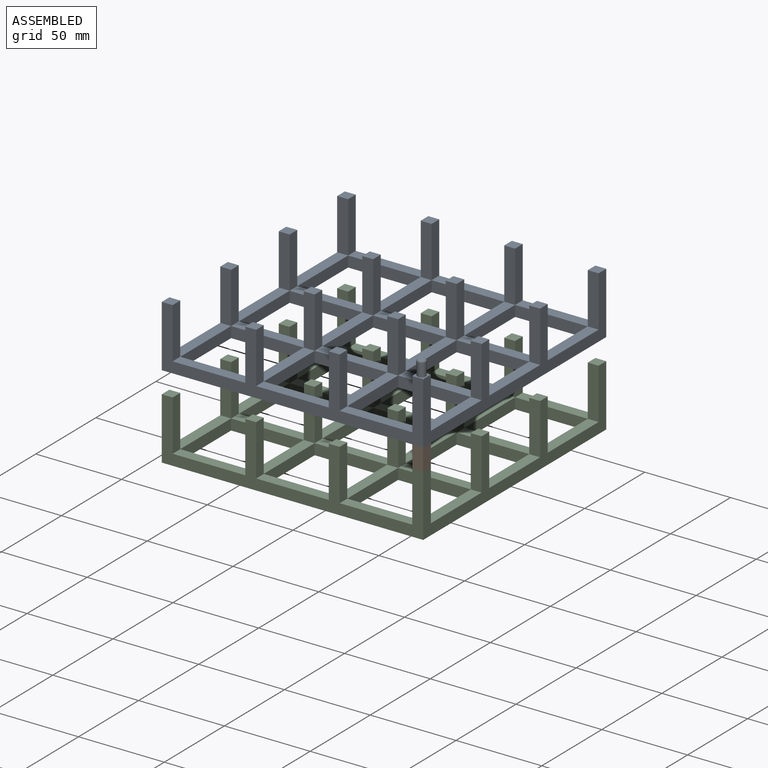
[diagram: assembled view]
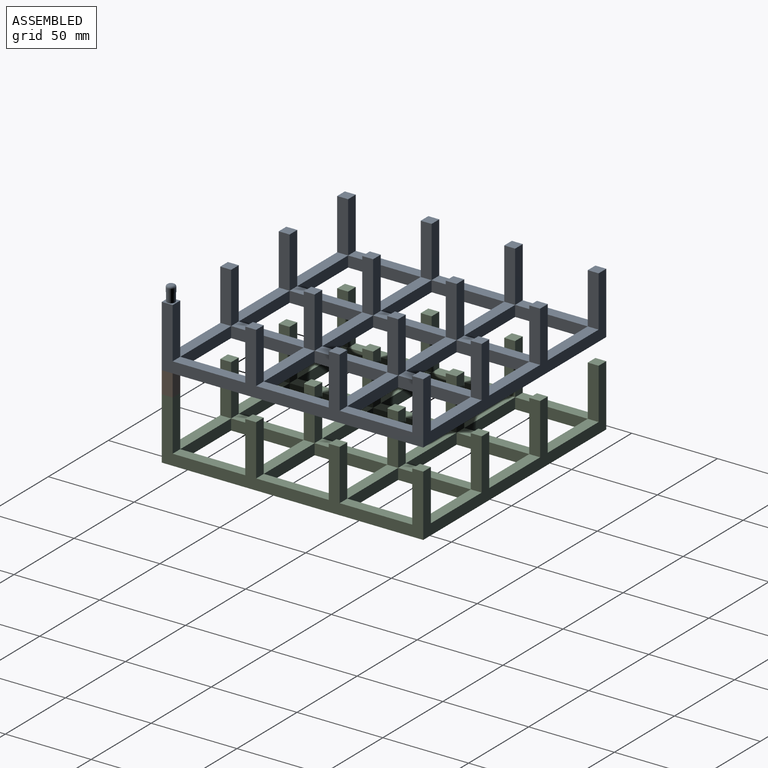
[diagram: assembled view, second angle]
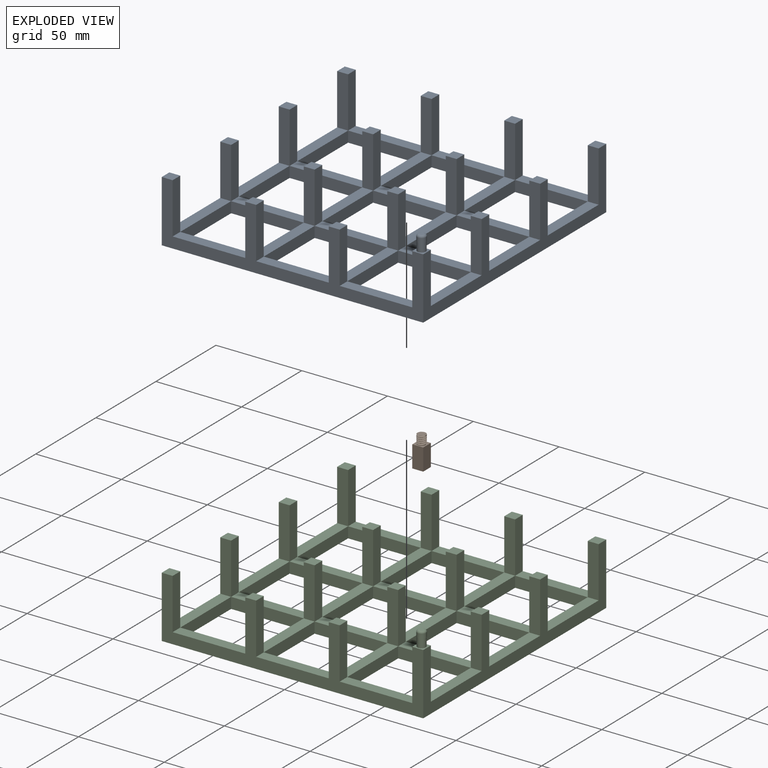
[diagram: exploded view]
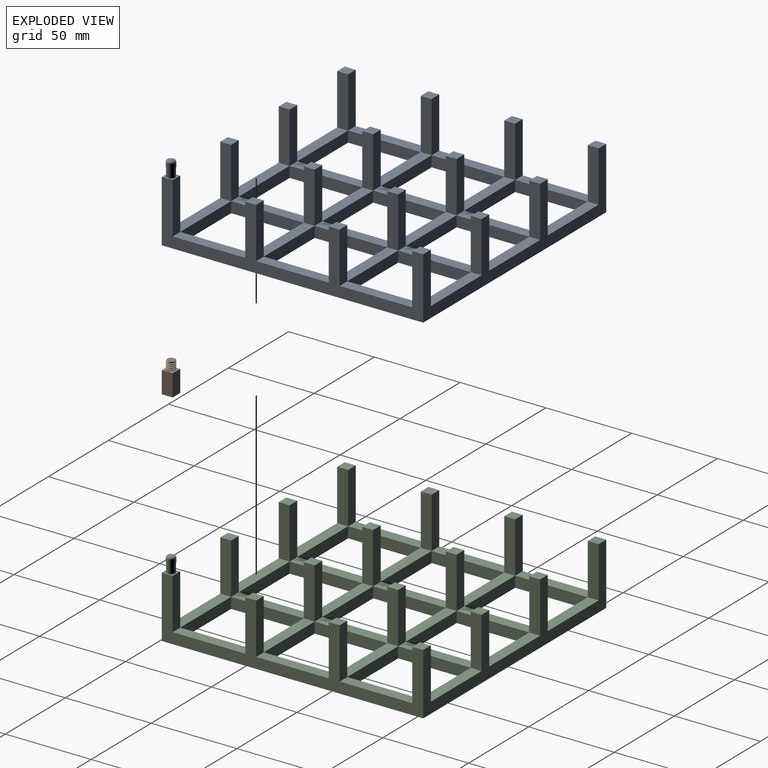
[diagram: exploded view, second angle]
ASSEMBLY  parts=3 mates=2
PART A: 134 faces, bbox 152.4x152.4x44.9 mm
  f0: plane 42.33x6.35mm, normal (0,0,1), area 268.8mm2, adj f75,f76,f95,f125
  f1: plane 42.33x6.35mm, normal (0,0,1), area 268.8mm2, adj f44,f47,f115,f126
  f2: plane 42.33x6.35mm, normal (0,0,1), area 268.8mm2, adj f81,f82,f121,f127
  f3: plane 42.33x6.35mm, normal (0,0,1), area 268.8mm2, adj f45,f48,f58,f128
  f4: plane 42.33x6.35mm, normal (0,0,1), area 268.8mm2, adj f38,f41,f100,f122
  f5: plane 42.33x6.35mm, normal (0,0,1), area 268.8mm2, adj f60,f87,f88,f123
  f6: plane 42.33x6.35mm, normal (0,0,1), area 268.8mm2, adj f36,f71,f72,f117
  f7: plane 42.33x6.35mm, normal (0,0,1), area 268.8mm2, adj f49,f52,f104,f118
  f8: plane 42.33x6.35mm, normal (0,0,1), area 268.8mm2, adj f77,f78,f116,f119
  f9: plane 42.33x6.35mm, normal (0,0,1), area 268.8mm2, adj f43,f46,f108,f113
  f10: plane 42.33x6.35mm, normal (0,0,1), area 268.8mm2, adj f39,f42,f58,f124
  f11: plane 42.33x6.35mm, normal (0,0,1), area 268.8mm2, adj f50,f53,f94,f120
  f12: plane 42.33x6.35mm, normal (0,0,1), area 268.8mm2, adj f85,f86,f107,f109
  f13: plane 42.33x6.35mm, normal (0,0,1), area 268.8mm2, adj f59,f62,f63,f110
  f14: plane 42.33x6.35mm, normal (0,0,1), area 268.8mm2, adj f60,f91,f92,f111
  f15: plane 42.33x6.35mm, normal (0,0,1), area 268.8mm2, adj f79,f80,f103,f105
  f16: plane 42.33x6.35mm, normal (0,0,1), area 268.8mm2, adj f59,f64,f65,f106
  f17: plane 42.33x6.35mm, normal (0,0,1), area 268.8mm2, adj f37,f40,f98,f112
  f18: plane 42.33x6.35mm, normal (0,0,1), area 268.8mm2, adj f36,f73,f74,f101
  f19: plane 42.33x6.35mm, normal (0,0,1), area 268.8mm2, adj f59,f66,f67,f102
  f20: plane 42.33x6.35mm, normal (0,0,1), area 268.8mm2, adj f83,f84,f97,f114
  f21: plane 42.33x6.35mm, normal (0,0,1), area 268.8mm2, adj f36,f69,f70,f93
  f22: plane 42.33x6.35mm, normal (0,0,1), area 268.8mm2, adj f60,f89,f90,f99
  f23: plane 152.4x152.4mm, normal (0,0,-1), area 7096.8mm2, adj f36,f58,f59,f60,f93,f94,f95,f96
  f24: plane 6.35x6.35mm, normal (0,0,1), area 40.3mm2, adj f46,f49,f77,f80
  f25: plane 6.35x6.35mm, normal (0,0,1), area 40.3mm2, adj f47,f50,f75,f78
  f26: plane 6.35x6.35mm, normal (0,0,1), area 40.3mm2, adj f48,f51,f58,f76
  f27: plane 6.35x6.35mm, normal (0,0,1), area 40.3mm2, adj f40,f43,f83,f86
  f28: plane 6.35x6.35mm, normal (0,0,1), area 40.3mm2, adj f41,f44,f81,f84
  f29: plane 6.35x6.35mm, normal (0,0,1), area 40.3mm2, adj f42,f45,f58,f82
  f30: plane 6.35x6.35mm, normal (0,0,1), area 40.3mm2, adj f37,f60,f90,f91
  f31: plane 6.35x6.35mm, normal (0,0,1), area 40.3mm2, adj f38,f60,f88,f89
  f32: plane 6.35x6.35mm, normal (0,0,1), area 40.3mm2, adj f39,f58,f60,f87
  f33: plane 6.35x6.35mm, normal (0,0,1), area 40.3mm2, adj f36,f52,f71,f74
  f34: plane 6.35x6.35mm, normal (0,0,1), area 40.3mm2, adj f36,f53,f69,f72
  f35: plane 6.35x6.35mm, normal (0,0,1), area 40.3mm2, adj f36,f54,f58,f70
  f36: plane 152.4x35.98mm, normal (-1,0,0), area 1720.4mm2, adj f6,f18,f21,f23,f33,f34,f35,f58
  f37: plane 29.63x6.35mm, normal (-1,0,0), area 188.2mm2, adj f17,f30,f90,f91
  f38: plane 29.63x6.35mm, normal (-1,0,0), area 188.2mm2, adj f4,f31,f88,f89
  f39: plane 29.63x6.35mm, normal (-1,0,0), area 188.2mm2, adj f10,f32,f58,f87
  f40: plane 29.63x6.35mm, normal (1,0,0), area 188.2mm2, adj f17,f27,f83,f86
  f41: plane 29.63x6.35mm, normal (1,0,0), area 188.2mm2, adj f4,f28,f81,f84
  f42: plane 29.63x6.35mm, normal (1,0,0), area 188.2mm2, adj f10,f29,f58,f82
  f43: plane 29.63x6.35mm, normal (-1,0,0), area 188.2mm2, adj f9,f27,f83,f86
  f44: plane 29.63x6.35mm, normal (-1,0,0), area 188.2mm2, adj f1,f28,f81,f84
  f45: plane 29.63x6.35mm, normal (-1,0,0), area 188.2mm2, adj f3,f29,f58,f82
  f46: plane 29.63x6.35mm, normal (1,0,0), area 188.2mm2, adj f9,f24,f77,f80
  f47: plane 29.63x6.35mm, normal (1,0,0), area 188.2mm2, adj f1,f25,f75,f78
  f48: plane 29.63x6.35mm, normal (1,0,0), area 188.2mm2, adj f3,f26,f58,f76
  f49: plane 29.63x6.35mm, normal (-1,0,0), area 188.2mm2, adj f7,f24,f77,f80
  f50: plane 29.63x6.35mm, normal (-1,0,0), area 188.2mm2, adj f11,f25,f75,f78
  f51: plane 29.63x6.35mm, normal (-1,0,0), area 188.2mm2, adj f26,f58,f68,f76
  f52: plane 29.63x6.35mm, normal (1,0,0), area 188.2mm2, adj f7,f33,f71,f74
  f53: plane 29.63x6.35mm, normal (1,0,0), area 188.2mm2, adj f11,f34,f69,f72
  f54: plane 29.63x6.35mm, normal (1,0,0), area 188.2mm2, adj f35,f58,f68,f70
  f55: plane 6.35x6.35mm, normal (0,0,1), area 40.3mm2, adj f59,f65,f66,f79
  f56: plane 6.35x6.35mm, normal (0,0,1), area 40.3mm2, adj f59,f63,f64,f85
  f57: plane 6.35x6.35mm, normal (0,0,1), area 22mm2, adj f59,f60,f62,f92,f129
  f58: plane 152.4x35.98mm, normal (0,1,0), area 1720.4mm2, adj f3,f10,f23,f26,f29,f32,f35,f36
  f59: plane 152.4x35.98mm, normal (0,-1,0), area 1720.4mm2, adj f13,f16,f19,f23,f36,f55,f56,f57
  f60: plane 152.4x35.98mm, normal (1,0,0), area 1720.4mm2, adj f5,f14,f22,f23,f30,f31,f32,f57
  f61: plane 6.35x6.35mm, normal (0,0,1), area 40.3mm2, adj f36,f59,f67,f73
  f62: plane 29.63x6.35mm, normal (-1,0,0), area 188.2mm2, adj f13,f57,f59,f92
  f63: plane 29.63x6.35mm, normal (1,0,0), area 188.2mm2, adj f13,f56,f59,f85
  f64: plane 29.63x6.35mm, normal (-1,0,0), area 188.2mm2, adj f16,f56,f59,f85
  f65: plane 29.63x6.35mm, normal (1,0,0), area 188.2mm2, adj f16,f55,f59,f79
  f66: plane 29.63x6.35mm, normal (-1,0,0), area 188.2mm2, adj f19,f55,f59,f79
  f67: plane 29.63x6.35mm, normal (1,0,0), area 188.2mm2, adj f19,f59,f61,f73
  f68: plane 42.33x6.35mm, normal (0,0,1), area 268.8mm2, adj f51,f54,f58,f96
  f69: plane 29.63x6.35mm, normal (0,1,0), area 188.2mm2, adj f21,f34,f36,f53
  f70: plane 29.63x6.35mm, normal (0,-1,0), area 188.2mm2, adj f21,f35,f36,f54
  f71: plane 29.63x6.35mm, normal (0,1,0), area 188.2mm2, adj f6,f33,f36,f52
  f72: plane 29.63x6.35mm, normal (0,-1,0), area 188.2mm2, adj f6,f34,f36,f53
  f73: plane 29.63x6.35mm, normal (0,1,0), area 188.2mm2, adj f18,f36,f61,f67
  f74: plane 29.63x6.35mm, normal (0,-1,0), area 188.2mm2, adj f18,f33,f36,f52
  f75: plane 29.63x6.35mm, normal (0,1,0), area 188.2mm2, adj f0,f25,f47,f50
  f76: plane 29.63x6.35mm, normal (0,-1,0), area 188.2mm2, adj f0,f26,f48,f51
  f77: plane 29.63x6.35mm, normal (0,1,0), area 188.2mm2, adj f8,f24,f46,f49
  f78: plane 29.63x6.35mm, normal (0,-1,0), area 188.2mm2, adj f8,f25,f47,f50
  f79: plane 29.63x6.35mm, normal (0,1,0), area 188.2mm2, adj f15,f55,f65,f66
  f80: plane 29.63x6.35mm, normal (0,-1,0), area 188.2mm2, adj f15,f24,f46,f49
  f81: plane 29.63x6.35mm, normal (0,1,0), area 188.2mm2, adj f2,f28,f41,f44
  f82: plane 29.63x6.35mm, normal (0,-1,0), area 188.2mm2, adj f2,f29,f42,f45
  f83: plane 29.63x6.35mm, normal (0,1,0), area 188.2mm2, adj f20,f27,f40,f43
  f84: plane 29.63x6.35mm, normal (0,-1,0), area 188.2mm2, adj f20,f28,f41,f44
  f85: plane 29.63x6.35mm, normal (0,1,0), area 188.2mm2, adj f12,f56,f63,f64
  f86: plane 29.63x6.35mm, normal (0,-1,0), area 188.2mm2, adj f12,f27,f40,f43
  f87: plane 29.63x6.35mm, normal (0,-1,0), area 188.2mm2, adj f5,f32,f39,f60
  f88: plane 29.63x6.35mm, normal (0,1,0), area 188.2mm2, adj f5,f31,f38,f60
  f89: plane 29.63x6.35mm, normal (0,-1,0), area 188.2mm2, adj f22,f31,f38,f60
  f90: plane 29.63x6.35mm, normal (0,1,0), area 188.2mm2, adj f22,f30,f37,f60
  f91: plane 29.63x6.35mm, normal (0,-1,0), area 188.2mm2, adj f14,f30,f37,f60
  f92: plane 29.63x6.35mm, normal (0,1,0), area 188.2mm2, adj f14,f57,f60,f62
  f93: plane 42.33x6.35mm, normal (1,0,0), area 268.8mm2, adj f21,f23,f94,f96
  f94: plane 42.33x6.35mm, normal (0,1,0), area 268.8mm2, adj f11,f23,f93,f95
  f95: plane 42.33x6.35mm, normal (-1,0,0), area 268.8mm2, adj f0,f23,f94,f96
  f96: plane 42.33x6.35mm, normal (0,-1,0), area 268.8mm2, adj f23,f68,f93,f95
  f97: plane 42.33x6.35mm, normal (1,0,0), area 268.8mm2, adj f20,f23,f98,f100
  f98: plane 42.33x6.35mm, normal (0,1,0), area 268.8mm2, adj f17,f23,f97,f99
  f99: plane 42.33x6.35mm, normal (-1,0,0), area 268.8mm2, adj f22,f23,f98,f100
  f100: plane 42.33x6.35mm, normal (0,-1,0), area 268.8mm2, adj f4,f23,f97,f99
  f101: plane 42.33x6.35mm, normal (1,0,0), area 268.8mm2, adj f18,f23,f102,f104
  f102: plane 42.33x6.35mm, normal (0,1,0), area 268.8mm2, adj f19,f23,f101,f103
  f103: plane 42.33x6.35mm, normal (-1,0,0), area 268.8mm2, adj f15,f23,f102,f104
  f104: plane 42.33x6.35mm, normal (0,-1,0), area 268.8mm2, adj f7,f23,f101,f103
  f105: plane 42.33x6.35mm, normal (1,0,0), area 268.8mm2, adj f15,f23,f106,f108
  f106: plane 42.33x6.35mm, normal (0,1,0), area 268.8mm2, adj f16,f23,f105,f107
  f107: plane 42.33x6.35mm, normal (-1,0,0), area 268.8mm2, adj f12,f23,f106,f108
  f108: plane 42.33x6.35mm, normal (0,-1,0), area 268.8mm2, adj f9,f23,f105,f107
  f109: plane 42.33x6.35mm, normal (1,0,0), area 268.8mm2, adj f12,f23,f110,f112
  f110: plane 42.33x6.35mm, normal (0,1,0), area 268.8mm2, adj f13,f23,f109,f111
  f111: plane 42.33x6.35mm, normal (-1,0,0), area 268.8mm2, adj f14,f23,f110,f112
  f112: plane 42.33x6.35mm, normal (0,-1,0), area 268.8mm2, adj f17,f23,f109,f111
  f113: plane 42.33x6.35mm, normal (0,1,0), area 268.8mm2, adj f9,f23,f114,f116
  f114: plane 42.33x6.35mm, normal (-1,0,0), area 268.8mm2, adj f20,f23,f113,f115
  f115: plane 42.33x6.35mm, normal (0,-1,0), area 268.8mm2, adj f1,f23,f114,f116
  f116: plane 42.33x6.35mm, normal (1,0,0), area 268.8mm2, adj f8,f23,f113,f115
  f117: plane 42.33x6.35mm, normal (1,0,0), area 268.8mm2, adj f6,f23,f118,f120
  f118: plane 42.33x6.35mm, normal (0,1,0), area 268.8mm2, adj f7,f23,f117,f119
  f119: plane 42.33x6.35mm, normal (-1,0,0), area 268.8mm2, adj f8,f23,f118,f120
  f120: plane 42.33x6.35mm, normal (0,-1,0), area 268.8mm2, adj f11,f23,f117,f119
  f121: plane 42.33x6.35mm, normal (1,0,0), area 268.8mm2, adj f2,f23,f122,f124
  f122: plane 42.33x6.35mm, normal (0,1,0), area 268.8mm2, adj f4,f23,f121,f123
  f123: plane 42.33x6.35mm, normal (-1,0,0), area 268.8mm2, adj f5,f23,f122,f124
  f124: plane 42.33x6.35mm, normal (0,-1,0), area 268.8mm2, adj f10,f23,f121,f123
  f125: plane 42.33x6.35mm, normal (1,0,0), area 268.8mm2, adj f0,f23,f126,f128
  f126: plane 42.33x6.35mm, normal (0,1,0), area 268.8mm2, adj f1,f23,f125,f127
  f127: plane 42.33x6.35mm, normal (-1,0,0), area 268.8mm2, adj f2,f23,f126,f128
  f128: plane 42.33x6.35mm, normal (0,-1,0), area 268.8mm2, adj f3,f23,f125,f127
  f129: cylinder r=2.41mm len=5.08mm, axis (0,0,-1), area 77mm2, adj f57,f132
  f130: cylinder r=2.54mm len=5.08mm, axis (0,0,-1), area 40.5mm2, adj f132,f133
  f131: plane 2.54x2.54mm, normal (0,0,1), area 5.1mm2, adj f133
  f132: plane 5.08x5.08mm, normal (0,0,-1), area 2mm2, adj f129,f130
  f133: torus R=1.27mm, axis (0,0,1), area 26.1mm2, adj f130,f131
PART B: 16 faces, bbox 6.4x6.4x18.3 mm
  f0: plane 5.08x4.78mm, normal (0,0,1), area 17.9mm2, adj f11,f13,f14
  f1: plane 12.7x6.35mm, normal (0,1,0), area 80.6mm2, adj f2,f4,f5,f6
  f2: plane 12.7x6.35mm, normal (-1,0,0), area 80.6mm2, adj f1,f3,f5,f6
  f3: plane 12.7x6.35mm, normal (0,-1,0), area 80.6mm2, adj f2,f4,f5,f6
  f4: plane 12.7x6.35mm, normal (1,0,0), area 80.6mm2, adj f1,f3,f5,f6
  f5: plane 6.35x6.35mm, normal (0,0,1), area 22.4mm2, adj f1,f2,f3,f4,f11,f12,f15
  f6: plane 6.35x6.35mm, normal (0,0,-1), area 21.1mm2, adj f1,f2,f3,f4,f7
  f7: cylinder r=2.48mm len=5.21mm, axis (0,0,-1), area 81mm2, adj f6,f8
  f8: plane 5.13x5.13mm, normal (0,0,1), area 1.4mm2, adj f7,f9
  f9: cylinder r=2.57mm len=5.13mm, axis (0,0,1), area 63.5mm2, adj f8,f10
  f10: plane 5.13x5.13mm, normal (0,0,-1), area 20.7mm2, adj f9
  f11: cylinder r=2.54mm len=5.08mm, axis (0,0,-1), area 13.9mm2, adj f0,f5,f12,f13,f14,f15
  f12: plane 0.76x0.44mm, normal (0,1,0), area 0.2mm2, adj f5,f11,f14
  f13: plane 0.76x0.44mm, normal (0,-1,0), area 0.2mm2, adj f0,f11,f15
  f14: bspline ~6.14x5.59mm, area 57mm2, adj f0,f11,f12,f15
  f15: bspline ~6.14x5.59mm, area 57.1mm2, adj f5,f11,f13,f14
PART C: same geometry as A
PLACE A t=(-75.16,-44.78,-28.91)mm
PLACE B t=(70.89,-44.78,-41.61)mm
PLACE C t=(-75.16,-44.78,-77.59)mm
MATE revolute C.f129 <-> B.f7  axis (0,0,-1) through (74.07,-41.6,-41.61)mm
MATE fastened B.f5 <-> A.f23  axis (0,0,1) through (77.24,-44.78,-28.91)mm
